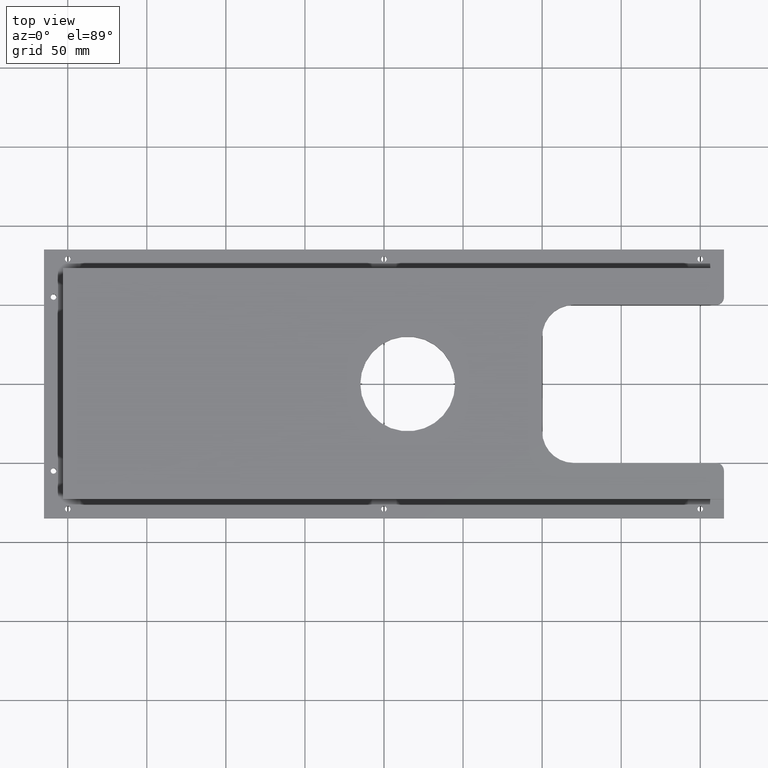
[diagram: clean part render]
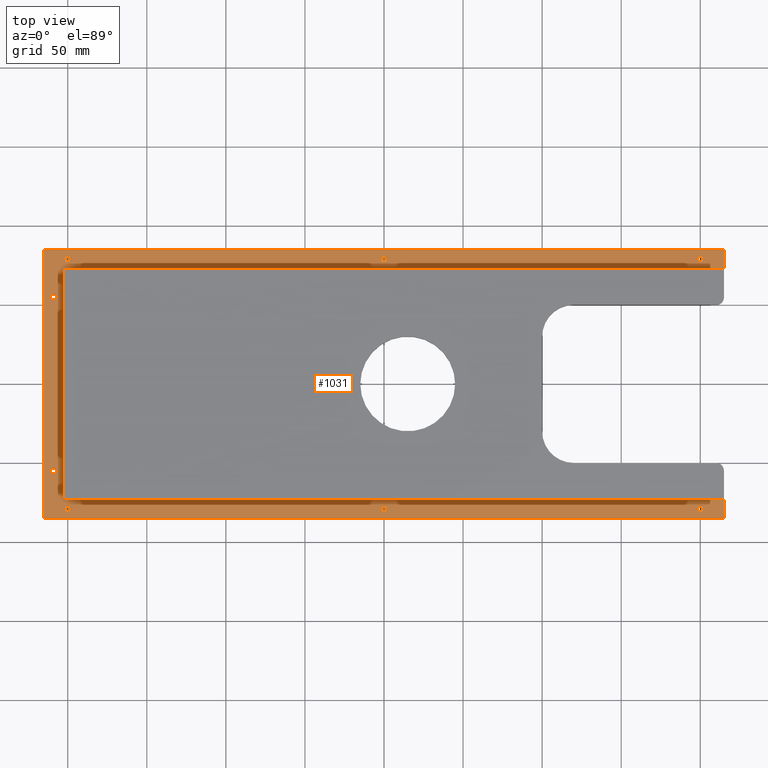
[diagram: same view with one face highlighted and labeled with its STEP entity id]
A machine part, top view. The second image highlights one B-rep face of the part: STEP entity #1031.
In plain terms, the highlighted planar face has unit normal (-0, 0, 1).
Its self-contained STEP definition (entity closure, byte-faithful):
#9 = CARTESIAN_POINT ( 'NONE',  ( 214.9999999999999700, 85.00000000000001400, 2.000000000000000000 ) ) ;
#21 = EDGE_CURVE ( 'NONE', #159, #1128, #84, .T. ) ;
#27 = EDGE_CURVE ( 'NONE', #750, #148, #72, .T. ) ;
#28 = CIRCLE ( 'NONE', #823, 1.750000000000001600 ) ;
#32 = DIRECTION ( 'NONE',  ( -0.0000000000000000000, 0.0000000000000000000, 1.000000000000000000 ) ) ;
#43 = CARTESIAN_POINT ( 'NONE',  ( -2.775557561562891400E-014, -79.00000000000001400, 2.000000000000000000 ) ) ;
#45 = DIRECTION ( 'NONE',  ( 1.000000000000000000, 0.0000000000000000000, 0.0000000000000000000 ) ) ;
#52 = DIRECTION ( 'NONE',  ( -0.0000000000000000000, 0.0000000000000000000, 1.000000000000000000 ) ) ;
#57 = EDGE_CURVE ( 'NONE', #1162, #430, #684, .T. ) ;
#61 = CIRCLE ( 'NONE', #579, 1.750000000000001600 ) ;
#63 = CARTESIAN_POINT ( 'NONE',  ( 215.0000000000000000, -73.00000000000000000, 2.000000000000000000 ) ) ;
#69 = CARTESIAN_POINT ( 'NONE',  ( -207.2500000000000000, 55.00000000000000000, 2.000000000000000000 ) ) ;
#70 = VECTOR ( 'NONE', #505, 1000.000000000000000 ) ;
#72 = CIRCLE ( 'NONE', #485, 1.750000000000001600 ) ;
#76 = CARTESIAN_POINT ( 'NONE',  ( -215.0000000000000300, 85.00000000000001400, 2.000000000000000000 ) ) ;
#82 = CIRCLE ( 'NONE', #133, 1.750000000000001600 ) ;
#84 = LINE ( 'NONE', #292, #70 ) ;
#90 = EDGE_LOOP ( 'NONE', ( #130, #1186 ) ) ;
#120 = CIRCLE ( 'NONE', #1195, 1.750000000000001600 ) ;
#121 = EDGE_CURVE ( 'NONE', #958, #1198, #1171, .T. ) ;
#125 = EDGE_CURVE ( 'NONE', #311, #135, #765, .T. ) ;
#130 = ORIENTED_EDGE ( 'NONE', *, *, #150, .F. ) ;
#133 = AXIS2_PLACEMENT_3D ( 'NONE', #768, #837, #1021 ) ;
#135 = VERTEX_POINT ( 'NONE', #149 ) ;
#138 = CARTESIAN_POINT ( 'NONE',  ( 1.749999999999973800, -79.00000000000001400, 2.000000000000000000 ) ) ;
#140 = EDGE_CURVE ( 'NONE', #182, #742, #994, .T. ) ;
#143 = EDGE_CURVE ( 'NONE', #938, #1029, #120, .T. ) ;
#146 = VERTEX_POINT ( 'NONE', #917 ) ;
#147 = ORIENTED_EDGE ( 'NONE', *, *, #193, .T. ) ;
#148 = VERTEX_POINT ( 'NONE', #1247 ) ;
#149 = CARTESIAN_POINT ( 'NONE',  ( -1.750000000000029300, 79.00000000000001400, 2.000000000000000000 ) ) ;
#150 = EDGE_CURVE ( 'NONE', #135, #311, #82, .T. ) ;
#156 = CIRCLE ( 'NONE', #491, 1.750000000000001600 ) ;
#157 = DIRECTION ( 'NONE',  ( 1.000000000000000000, 0.0000000000000000000, 0.0000000000000000000 ) ) ;
#159 = VERTEX_POINT ( 'NONE', #396 ) ;
#165 = CARTESIAN_POINT ( 'NONE',  ( 198.2500000000000000, -79.00000000000001400, 2.000000000000000000 ) ) ;
#171 = DIRECTION ( 'NONE',  ( 1.000000000000000000, 0.0000000000000000000, 0.0000000000000000000 ) ) ;
#177 = EDGE_LOOP ( 'NONE', ( #833, #730 ) ) ;
#180 = AXIS2_PLACEMENT_3D ( 'NONE', #745, #1148, #157 ) ;
#182 = VERTEX_POINT ( 'NONE', #1263 ) ;
#185 = LINE ( 'NONE', #364, #872 ) ;
#188 = LINE ( 'NONE', #842, #678 ) ;
#193 = EDGE_CURVE ( 'NONE', #1166, #314, #585, .T. ) ;
#208 = ORIENTED_EDGE ( 'NONE', *, *, #140, .F. ) ;
#216 = EDGE_CURVE ( 'NONE', #314, #159, #1097, .T. ) ;
#218 = VECTOR ( 'NONE', #340, 1000.000000000000000 ) ;
#222 = EDGE_CURVE ( 'NONE', #1183, #297, #880, .T. ) ;
#229 = ORIENTED_EDGE ( 'NONE', *, *, #849, .T. ) ;
#235 = VERTEX_POINT ( 'NONE', #165 ) ;
#250 = FACE_BOUND ( 'NONE', #592, .T. ) ;
#264 = AXIS2_PLACEMENT_3D ( 'NONE', #732, #1151, #1083 ) ;
#265 = CARTESIAN_POINT ( 'NONE',  ( -209.0000000000000000, -55.00000000000000000, 2.000000000000000000 ) ) ;
#268 = EDGE_CURVE ( 'NONE', #916, #235, #28, .T. ) ;
#271 = EDGE_CURVE ( 'NONE', #148, #750, #1125, .T. ) ;
#286 = CARTESIAN_POINT ( 'NONE',  ( 200.0000000000000000, 79.00000000000001400, 2.000000000000000000 ) ) ;
#290 = ORIENTED_EDGE ( 'NONE', *, *, #391, .T. ) ;
#292 = CARTESIAN_POINT ( 'NONE',  ( -215.0000000000000300, 73.00000000000002800, 2.000000000000000000 ) ) ;
#293 = VECTOR ( 'NONE', #812, 1000.000000000000000 ) ;
#297 = VERTEX_POINT ( 'NONE', #726 ) ;
#307 = ORIENTED_EDGE ( 'NONE', *, *, #222, .F. ) ;
#311 = VERTEX_POINT ( 'NONE', #923 ) ;
#314 = VERTEX_POINT ( 'NONE', #931 ) ;
#323 = DIRECTION ( 'NONE',  ( 1.000000000000000000, 0.0000000000000000000, 0.0000000000000000000 ) ) ;
#324 = EDGE_CURVE ( 'NONE', #235, #916, #61, .T. ) ;
#327 = CARTESIAN_POINT ( 'NONE',  ( -201.7500000000000600, -79.00000000000001400, 2.000000000000000000 ) ) ;
#340 = DIRECTION ( 'NONE',  ( 0.0000000000000000000, -1.000000000000000000, 0.0000000000000000000 ) ) ;
#364 = CARTESIAN_POINT ( 'NONE',  ( -215.0000000000000000, -84.99999999999998600, 2.000000000000000000 ) ) ;
#373 = DIRECTION ( 'NONE',  ( 1.000000000000000000, 0.0000000000000000000, 0.0000000000000000000 ) ) ;
#374 = CIRCLE ( 'NONE', #721, 1.750000000000001600 ) ;
#377 = AXIS2_PLACEMENT_3D ( 'NONE', #1169, #1167, #1158 ) ;
#381 = VECTOR ( 'NONE', #692, 1000.000000000000000 ) ;
#391 = EDGE_CURVE ( 'NONE', #633, #146, #1143, .T. ) ;
#396 = CARTESIAN_POINT ( 'NONE',  ( -203.0000000000000000, 73.00000000000002800, 2.000000000000000000 ) ) ;
#399 = FACE_BOUND ( 'NONE', #177, .T. ) ;
#400 = CARTESIAN_POINT ( 'NONE',  ( -215.0000000000000300, 85.00000000000001400, 2.000000000000000000 ) ) ;
#402 = DIRECTION ( 'NONE',  ( 1.000000000000000000, 0.0000000000000000000, 0.0000000000000000000 ) ) ;
#415 = CARTESIAN_POINT ( 'NONE',  ( -200.0000000000000600, -79.00000000000001400, 2.000000000000000000 ) ) ;
#427 = EDGE_CURVE ( 'NONE', #1198, #958, #1234, .T. ) ;
#430 = VERTEX_POINT ( 'NONE', #980 ) ;
#441 = PLANE ( 'NONE',  #648 ) ;
#444 = DIRECTION ( 'NONE',  ( -0.0000000000000000000, 0.0000000000000000000, 1.000000000000000000 ) ) ;
#452 = EDGE_LOOP ( 'NONE', ( #290, #1242, #716, #147, #769, #550, #229, #1060 ) ) ;
#460 = EDGE_CURVE ( 'NONE', #297, #1183, #889, .T. ) ;
#463 = ORIENTED_EDGE ( 'NONE', *, *, #121, .F. ) ;
#464 = EDGE_CURVE ( 'NONE', #742, #182, #667, .T. ) ;
#466 = EDGE_LOOP ( 'NONE', ( #627, #307 ) ) ;
#485 = AXIS2_PLACEMENT_3D ( 'NONE', #265, #1262, #767 ) ;
#491 = AXIS2_PLACEMENT_3D ( 'NONE', #808, #799, #774 ) ;
#505 = DIRECTION ( 'NONE',  ( 1.000000000000000000, 0.0000000000000000000, 0.0000000000000000000 ) ) ;
#508 = DIRECTION ( 'NONE',  ( -0.0000000000000000000, 0.0000000000000000000, 1.000000000000000000 ) ) ;
#509 = CARTESIAN_POINT ( 'NONE',  ( 200.0000000000000000, -79.00000000000001400, 2.000000000000000000 ) ) ;
#511 = DIRECTION ( 'NONE',  ( 4.625929269271486900E-015, 1.000000000000000000, 0.0000000000000000000 ) ) ;
#518 = CARTESIAN_POINT ( 'NONE',  ( -209.0000000000000000, 55.00000000000000000, 2.000000000000000000 ) ) ;
#520 = CARTESIAN_POINT ( 'NONE',  ( -209.0000000000000000, 55.00000000000000000, 2.000000000000000000 ) ) ;
#524 = EDGE_CURVE ( 'NONE', #1029, #938, #156, .T. ) ;
#533 = EDGE_LOOP ( 'NONE', ( #1134, #739 ) ) ;
#539 = ORIENTED_EDGE ( 'NONE', *, *, #464, .F. ) ;
#550 = ORIENTED_EDGE ( 'NONE', *, *, #21, .T. ) ;
#552 = VERTEX_POINT ( 'NONE', #599 ) ;
#579 = AXIS2_PLACEMENT_3D ( 'NONE', #676, #666, #661 ) ;
#585 = LINE ( 'NONE', #1155, #850 ) ;
#592 = EDGE_LOOP ( 'NONE', ( #1270, #463 ) ) ;
#598 = AXIS2_PLACEMENT_3D ( 'NONE', #43, #32, #673 ) ;
#599 = CARTESIAN_POINT ( 'NONE',  ( 214.9999999999999700, 85.00000000000001400, 2.000000000000000000 ) ) ;
#602 = CARTESIAN_POINT ( 'NONE',  ( 201.7500000000000000, -79.00000000000001400, 2.000000000000000000 ) ) ;
#604 = ORIENTED_EDGE ( 'NONE', *, *, #143, .F. ) ;
#609 = EDGE_LOOP ( 'NONE', ( #1082, #604 ) ) ;
#627 = ORIENTED_EDGE ( 'NONE', *, *, #460, .F. ) ;
#633 = VERTEX_POINT ( 'NONE', #76 ) ;
#645 = CARTESIAN_POINT ( 'NONE',  ( -1.750000000000029300, -79.00000000000001400, 2.000000000000000000 ) ) ;
#648 = AXIS2_PLACEMENT_3D ( 'NONE', #1266, #1258, #1185 ) ;
#657 = ORIENTED_EDGE ( 'NONE', *, *, #27, .F. ) ;
#661 = DIRECTION ( 'NONE',  ( 1.000000000000000000, 0.0000000000000000000, 0.0000000000000000000 ) ) ;
#666 = DIRECTION ( 'NONE',  ( -0.0000000000000000000, 0.0000000000000000000, 1.000000000000000000 ) ) ;
#667 = CIRCLE ( 'NONE', #377, 1.750000000000001600 ) ;
#673 = DIRECTION ( 'NONE',  ( 1.000000000000000000, 0.0000000000000000000, 0.0000000000000000000 ) ) ;
#676 = CARTESIAN_POINT ( 'NONE',  ( 200.0000000000000000, -79.00000000000001400, 2.000000000000000000 ) ) ;
#678 = VECTOR ( 'NONE', #511, 1000.000000000000000 ) ;
#684 = CIRCLE ( 'NONE', #919, 1.750000000000001600 ) ;
#691 = EDGE_LOOP ( 'NONE', ( #539, #208 ) ) ;
#692 = DIRECTION ( 'NONE',  ( -1.000000000000000000, -0.0000000000000000000, -0.0000000000000000000 ) ) ;
#695 = FACE_BOUND ( 'NONE', #466, .T. ) ;
#700 = AXIS2_PLACEMENT_3D ( 'NONE', #1204, #1173, #1136 ) ;
#701 = CARTESIAN_POINT ( 'NONE',  ( -215.0000000000000300, 85.00000000000001400, 2.000000000000000000 ) ) ;
#716 = ORIENTED_EDGE ( 'NONE', *, *, #1214, .T. ) ;
#721 = AXIS2_PLACEMENT_3D ( 'NONE', #518, #52, #45 ) ;
#726 = CARTESIAN_POINT ( 'NONE',  ( 198.2500000000000000, 79.00000000000001400, 2.000000000000000000 ) ) ;
#730 = ORIENTED_EDGE ( 'NONE', *, *, #57, .F. ) ;
#732 = CARTESIAN_POINT ( 'NONE',  ( -200.0000000000000600, 79.00000000000001400, 2.000000000000000000 ) ) ;
#739 = ORIENTED_EDGE ( 'NONE', *, *, #268, .F. ) ;
#742 = VERTEX_POINT ( 'NONE', #963 ) ;
#745 = CARTESIAN_POINT ( 'NONE',  ( -2.775557561562891400E-014, 79.00000000000001400, 2.000000000000000000 ) ) ;
#750 = VERTEX_POINT ( 'NONE', #885 ) ;
#760 = FACE_OUTER_BOUND ( 'NONE', #452, .T. ) ;
#761 = CARTESIAN_POINT ( 'NONE',  ( 214.9999999999999700, 73.00000000000002800, 2.000000000000000000 ) ) ;
#762 = FACE_BOUND ( 'NONE', #90, .T. ) ;
#765 = CIRCLE ( 'NONE', #180, 1.750000000000001600 ) ;
#767 = DIRECTION ( 'NONE',  ( 1.000000000000000000, 0.0000000000000000000, 0.0000000000000000000 ) ) ;
#768 = CARTESIAN_POINT ( 'NONE',  ( -2.775557561562891400E-014, 79.00000000000001400, 2.000000000000000000 ) ) ;
#769 = ORIENTED_EDGE ( 'NONE', *, *, #216, .T. ) ;
#774 = DIRECTION ( 'NONE',  ( 1.000000000000000000, 0.0000000000000000000, 0.0000000000000000000 ) ) ;
#799 = DIRECTION ( 'NONE',  ( -0.0000000000000000000, 0.0000000000000000000, 1.000000000000000000 ) ) ;
#808 = CARTESIAN_POINT ( 'NONE',  ( -200.0000000000000600, -79.00000000000001400, 2.000000000000000000 ) ) ;
#812 = DIRECTION ( 'NONE',  ( -0.0000000000000000000, 1.000000000000000000, -0.0000000000000000000 ) ) ;
#823 = AXIS2_PLACEMENT_3D ( 'NONE', #509, #1092, #853 ) ;
#833 = ORIENTED_EDGE ( 'NONE', *, *, #1130, .F. ) ;
#837 = DIRECTION ( 'NONE',  ( -0.0000000000000000000, 0.0000000000000000000, 1.000000000000000000 ) ) ;
#839 = LINE ( 'NONE', #9, #293 ) ;
#842 = CARTESIAN_POINT ( 'NONE',  ( 214.9999999999999400, -84.99999999999998600, 2.000000000000000000 ) ) ;
#849 = EDGE_CURVE ( 'NONE', #1128, #552, #839, .T. ) ;
#850 = VECTOR ( 'NONE', #1232, 1000.000000000000000 ) ;
#853 = DIRECTION ( 'NONE',  ( 1.000000000000000000, 0.0000000000000000000, 0.0000000000000000000 ) ) ;
#857 = FACE_BOUND ( 'NONE', #533, .T. ) ;
#872 = VECTOR ( 'NONE', #373, 1000.000000000000000 ) ;
#880 = CIRCLE ( 'NONE', #936, 1.750000000000001600 ) ;
#884 = CARTESIAN_POINT ( 'NONE',  ( -198.2500000000000600, -79.00000000000001400, 2.000000000000000000 ) ) ;
#885 = CARTESIAN_POINT ( 'NONE',  ( -210.7500000000000000, -55.00000000000000000, 2.000000000000000000 ) ) ;
#886 = FACE_BOUND ( 'NONE', #609, .T. ) ;
#889 = CIRCLE ( 'NONE', #1233, 1.750000000000001600 ) ;
#902 = DIRECTION ( 'NONE',  ( -0.0000000000000000000, 0.0000000000000000000, 1.000000000000000000 ) ) ;
#910 = EDGE_CURVE ( 'NONE', #552, #633, #1113, .T. ) ;
#916 = VERTEX_POINT ( 'NONE', #602 ) ;
#917 = CARTESIAN_POINT ( 'NONE',  ( -215.0000000000000000, -84.99999999999998600, 2.000000000000000000 ) ) ;
#919 = AXIS2_PLACEMENT_3D ( 'NONE', #520, #508, #323 ) ;
#923 = CARTESIAN_POINT ( 'NONE',  ( 1.749999999999973800, 79.00000000000001400, 2.000000000000000000 ) ) ;
#931 = CARTESIAN_POINT ( 'NONE',  ( -203.0000000000000000, -73.00000000000001400, 2.000000000000000000 ) ) ;
#936 = AXIS2_PLACEMENT_3D ( 'NONE', #286, #1181, #171 ) ;
#938 = VERTEX_POINT ( 'NONE', #884 ) ;
#947 = EDGE_CURVE ( 'NONE', #146, #1217, #185, .T. ) ;
#958 = VERTEX_POINT ( 'NONE', #138 ) ;
#963 = CARTESIAN_POINT ( 'NONE',  ( -201.7500000000000600, 79.00000000000001400, 2.000000000000000000 ) ) ;
#966 = EDGE_LOOP ( 'NONE', ( #657, #1238 ) ) ;
#980 = CARTESIAN_POINT ( 'NONE',  ( -210.7500000000000000, 55.00000000000000000, 2.000000000000000000 ) ) ;
#993 = DIRECTION ( 'NONE',  ( 1.000000000000000000, 0.0000000000000000000, 0.0000000000000000000 ) ) ;
#994 = CIRCLE ( 'NONE', #264, 1.750000000000001600 ) ;
#999 = CARTESIAN_POINT ( 'NONE',  ( -209.0000000000000000, -55.00000000000000000, 2.000000000000000000 ) ) ;
#1009 = CARTESIAN_POINT ( 'NONE',  ( 201.7500000000000000, 79.00000000000001400, 2.000000000000000000 ) ) ;
#1011 = AXIS2_PLACEMENT_3D ( 'NONE', #999, #902, #402 ) ;
#1017 = DIRECTION ( 'NONE',  ( -1.901066822988281500E-016, 1.000000000000000000, -0.0000000000000000000 ) ) ;
#1021 = DIRECTION ( 'NONE',  ( 1.000000000000000000, 0.0000000000000000000, 0.0000000000000000000 ) ) ;
#1029 = VERTEX_POINT ( 'NONE', #327 ) ;
#1031 = ADVANCED_FACE ( 'NONE', ( #399, #1156, #250, #762, #1106, #886, #760, #695, #857 ), #441, .T. ) ;
#1060 = ORIENTED_EDGE ( 'NONE', *, *, #910, .T. ) ;
#1073 = VECTOR ( 'NONE', #1017, 1000.000000000000000 ) ;
#1082 = ORIENTED_EDGE ( 'NONE', *, *, #524, .F. ) ;
#1083 = DIRECTION ( 'NONE',  ( 1.000000000000000000, 0.0000000000000000000, 0.0000000000000000000 ) ) ;
#1092 = DIRECTION ( 'NONE',  ( -0.0000000000000000000, 0.0000000000000000000, 1.000000000000000000 ) ) ;
#1097 = LINE ( 'NONE', #1254, #1073 ) ;
#1106 = FACE_BOUND ( 'NONE', #691, .T. ) ;
#1113 = LINE ( 'NONE', #701, #381 ) ;
#1125 = CIRCLE ( 'NONE', #1011, 1.750000000000001600 ) ;
#1128 = VERTEX_POINT ( 'NONE', #761 ) ;
#1130 = EDGE_CURVE ( 'NONE', #430, #1162, #374, .T. ) ;
#1134 = ORIENTED_EDGE ( 'NONE', *, *, #324, .F. ) ;
#1136 = DIRECTION ( 'NONE',  ( 1.000000000000000000, 0.0000000000000000000, 0.0000000000000000000 ) ) ;
#1143 = LINE ( 'NONE', #400, #218 ) ;
#1148 = DIRECTION ( 'NONE',  ( -0.0000000000000000000, 0.0000000000000000000, 1.000000000000000000 ) ) ;
#1151 = DIRECTION ( 'NONE',  ( -0.0000000000000000000, 0.0000000000000000000, 1.000000000000000000 ) ) ;
#1152 = CARTESIAN_POINT ( 'NONE',  ( 214.9999999999999400, -84.99999999999998600, 2.000000000000000000 ) ) ;
#1155 = CARTESIAN_POINT ( 'NONE',  ( -215.0000000000000300, -73.00000000000000000, 2.000000000000000000 ) ) ;
#1156 = FACE_BOUND ( 'NONE', #966, .T. ) ;
#1158 = DIRECTION ( 'NONE',  ( 1.000000000000000000, 0.0000000000000000000, 0.0000000000000000000 ) ) ;
#1162 = VERTEX_POINT ( 'NONE', #69 ) ;
#1166 = VERTEX_POINT ( 'NONE', #63 ) ;
#1167 = DIRECTION ( 'NONE',  ( -0.0000000000000000000, 0.0000000000000000000, 1.000000000000000000 ) ) ;
#1169 = CARTESIAN_POINT ( 'NONE',  ( -200.0000000000000600, 79.00000000000001400, 2.000000000000000000 ) ) ;
#1171 = CIRCLE ( 'NONE', #598, 1.750000000000001600 ) ;
#1173 = DIRECTION ( 'NONE',  ( -0.0000000000000000000, 0.0000000000000000000, 1.000000000000000000 ) ) ;
#1181 = DIRECTION ( 'NONE',  ( -0.0000000000000000000, 0.0000000000000000000, 1.000000000000000000 ) ) ;
#1183 = VERTEX_POINT ( 'NONE', #1009 ) ;
#1185 = DIRECTION ( 'NONE',  ( 1.000000000000000000, 0.0000000000000000000, 0.0000000000000000000 ) ) ;
#1186 = ORIENTED_EDGE ( 'NONE', *, *, #125, .F. ) ;
#1195 = AXIS2_PLACEMENT_3D ( 'NONE', #415, #444, #993 ) ;
#1197 = DIRECTION ( 'NONE',  ( 1.000000000000000000, 0.0000000000000000000, 0.0000000000000000000 ) ) ;
#1198 = VERTEX_POINT ( 'NONE', #645 ) ;
#1201 = DIRECTION ( 'NONE',  ( -0.0000000000000000000, 0.0000000000000000000, 1.000000000000000000 ) ) ;
#1204 = CARTESIAN_POINT ( 'NONE',  ( -2.775557561562891400E-014, -79.00000000000001400, 2.000000000000000000 ) ) ;
#1214 = EDGE_CURVE ( 'NONE', #1217, #1166, #188, .T. ) ;
#1217 = VERTEX_POINT ( 'NONE', #1152 ) ;
#1232 = DIRECTION ( 'NONE',  ( -1.000000000000000000, -0.0000000000000000000, -0.0000000000000000000 ) ) ;
#1233 = AXIS2_PLACEMENT_3D ( 'NONE', #1248, #1201, #1197 ) ;
#1234 = CIRCLE ( 'NONE', #700, 1.750000000000001600 ) ;
#1238 = ORIENTED_EDGE ( 'NONE', *, *, #271, .F. ) ;
#1242 = ORIENTED_EDGE ( 'NONE', *, *, #947, .T. ) ;
#1247 = CARTESIAN_POINT ( 'NONE',  ( -207.2500000000000000, -55.00000000000000000, 2.000000000000000000 ) ) ;
#1248 = CARTESIAN_POINT ( 'NONE',  ( 200.0000000000000000, 79.00000000000001400, 2.000000000000000000 ) ) ;
#1254 = CARTESIAN_POINT ( 'NONE',  ( -203.0000000000000000, 73.00000000000002800, 2.000000000000000000 ) ) ;
#1258 = DIRECTION ( 'NONE',  ( -0.0000000000000000000, 0.0000000000000000000, 1.000000000000000000 ) ) ;
#1262 = DIRECTION ( 'NONE',  ( -0.0000000000000000000, 0.0000000000000000000, 1.000000000000000000 ) ) ;
#1263 = CARTESIAN_POINT ( 'NONE',  ( -198.2500000000000600, 79.00000000000001400, 2.000000000000000000 ) ) ;
#1266 = CARTESIAN_POINT ( 'NONE',  ( 0.0000000000000000000, 0.0000000000000000000, 2.000000000000000000 ) ) ;
#1270 = ORIENTED_EDGE ( 'NONE', *, *, #427, .F. ) ;